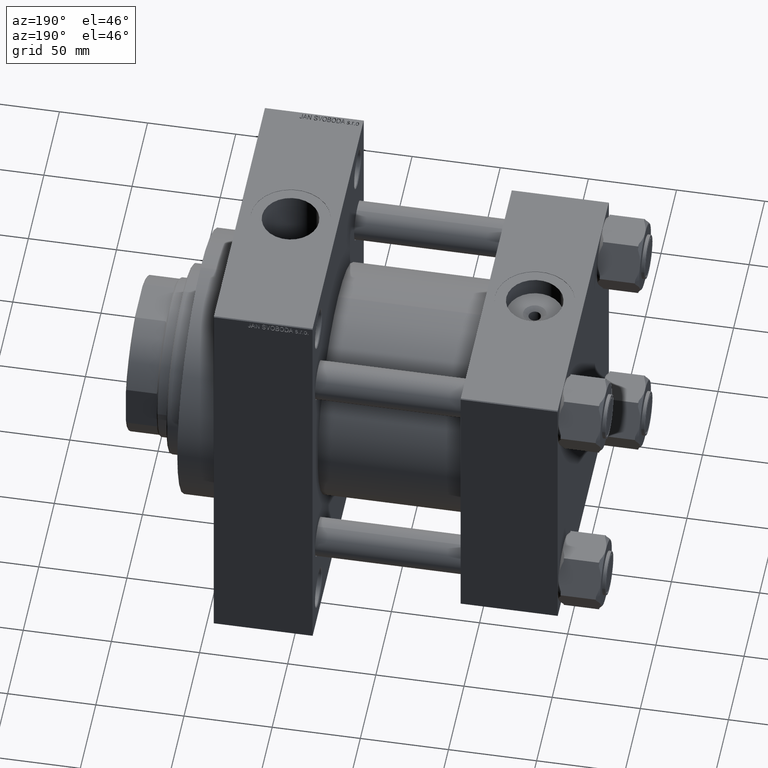
[diagram: clean part render]
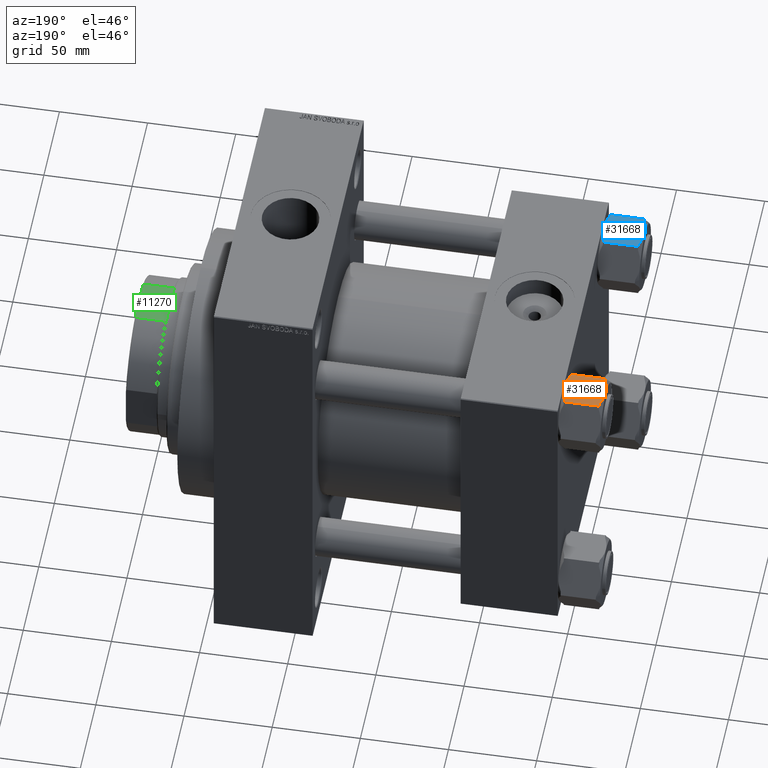
[diagram: same view with three faces highlighted in distinct colors, each labeled with its STEP entity id]
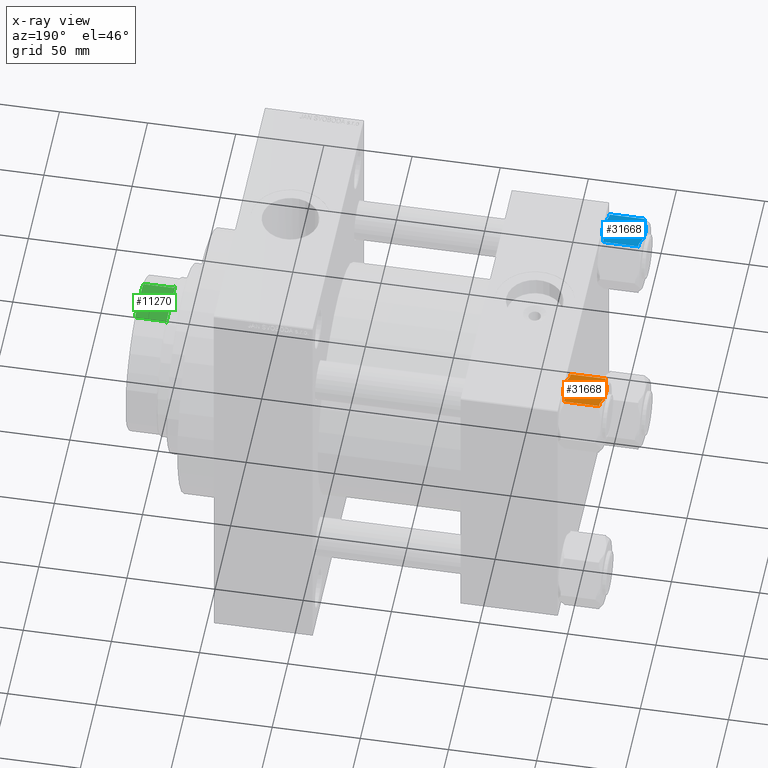
[diagram: x-ray of the same camera — body ghosted, the three highlighted faces saturated]
A machine part, auxiliary view with three faces highlighted in distinct colors.
The next image is the same camera in x-ray (body ghosted, the three faces saturated) — at least one of them is partly hidden behind the body in this view.
Their STEP definitions:

[orange] entity #31668 — the highlighted planar face has unit normal (0, -0, -1).
#232 = CARTESIAN_POINT ( 'NONE',  ( -1.921304447834798035, -18.72346922981957107, -23.90544093450555607 ) ) ;
#468 = CARTESIAN_POINT ( 'NONE',  ( -8.882222521378235314, -18.72346922981957107, -22.00000000000000000 ) ) ;
#1027 = CARTESIAN_POINT ( 'NONE',  ( -3.046460787050293550, -18.72346922981957817, -0.1914528163786773096 ) ) ;
#2355 = EDGE_CURVE ( 'NONE', #28222, #44941, #4615, .T. ) ;
#2752 = VECTOR ( 'NONE', #12035, 1000.000000000000000 ) ;
#3067 = AXIS2_PLACEMENT_3D ( 'NONE', #24650, #6187, #20763 ) ;
#3956 = CARTESIAN_POINT ( 'NONE',  ( -8.882222521378229985, -18.72346922981957107, -2.000000000000000000 ) ) ;
#4110 = CARTESIAN_POINT ( 'NONE',  ( -3.058371725687357490, -18.72346922981956752, -23.76678570710493332 ) ) ;
#4300 = CARTESIAN_POINT ( 'NONE',  ( 6.014330298555156773, -18.72346922981956396, -0.9304907305360362590 ) ) ;
#4602 = EDGE_CURVE ( 'NONE', #34521, #31603, #34482, .T. ) ;
#4615 = B_SPLINE_CURVE_WITH_KNOTS ( 'NONE', 3,
 ( #47775, #18675, #15031, #14553, #232, #4110, #29836, #11623, #44609, #30065, #18910, #468 ),
 .UNSPECIFIED., .F., .F.,
 ( 4, 2, 2, 2, 2, 4 ),
 ( 0.03829011598937170913, 0.03943115666170207007, 0.04057219733403243100, 0.04285427867869315288, 0.04513636002335388170, 0.04741844136801460358 ),
 .UNSPECIFIED. ) ;
#5619 = VECTOR ( 'NONE', #16119, 1000.000000000000000 ) ;
#5797 = CARTESIAN_POINT ( 'NONE',  ( -10.81000000000000227, -18.72346922981957107, -22.00000000000000000 ) ) ;
#5954 = EDGE_CURVE ( 'NONE', #34521, #19016, #46534, .T. ) ;
#6000 = B_SPLINE_CURVE_WITH_KNOTS ( 'NONE', 3,
 ( #3956, #18759, #19474, #8074, #29919, #1027, #45650, #15831 ),
 .UNSPECIFIED., .F., .F.,
 ( 4, 2, 2, 4 ),
 ( 0.02914159164821651313, 0.03142872273350531820, 0.03371585381879411980, 0.03829011598937172994 ),
 .UNSPECIFIED. ) ;
#6187 = DIRECTION ( 'NONE',  ( -1.604739570746352049E-16, 1.000000000000000000, 0.000000000000000000 ) ) ;
#6766 = CARTESIAN_POINT ( 'NONE',  ( -8.882222521378235314, -18.72346922981957107, -22.00000000000000000 ) ) ;
#6767 = CARTESIAN_POINT ( 'NONE',  ( 1.538851192155984648, -18.72346922981957107, -24.00000000000000000 ) ) ;
#7381 = CARTESIAN_POINT ( 'NONE',  ( 10.81000000000000405, -18.72346922981956752, -22.00000000000000000 ) ) ;
#7460 = CARTESIAN_POINT ( 'NONE',  ( 3.004629197474320035E-15, -18.72346922981957462, 0.000000000000000000 ) ) ;
#7692 = CARTESIAN_POINT ( 'NONE',  ( 5.284196261866825672, -18.72346922981957107, -0.7181181227872810435 ) ) ;
#7975 = EDGE_CURVE ( 'NONE', #9614, #29574, #44966, .T. ) ;
#8074 = CARTESIAN_POINT ( 'NONE',  ( -6.004110770065005376, -18.72346922981956396, -0.9271504873037127448 ) ) ;
#8160 = CARTESIAN_POINT ( 'NONE',  ( 8.882222521378242419, -18.72346922981957107, -22.00000000000000000 ) ) ;
#8384 = ORIENTED_EDGE ( 'NONE', *, *, #2355, .F. ) ;
#9010 = DIRECTION ( 'NONE',  ( -1.000000000000000000, -1.604739570746352049E-16, 0.000000000000000000 ) ) ;
#9614 = VERTEX_POINT ( 'NONE', #5797 ) ;
#9694 = CARTESIAN_POINT ( 'NONE',  ( 3.046460787050301100, -18.72346922981956396, -23.80854718362132516 ) ) ;
#11023 = CARTESIAN_POINT ( 'NONE',  ( 10.81000000000000405, -18.72346922981956752, -2.000000000000001776 ) ) ;
#11102 = CARTESIAN_POINT ( 'NONE',  ( 7.459573834530431213, -18.72346922981957107, -1.419798007050265376 ) ) ;
#11623 = CARTESIAN_POINT ( 'NONE',  ( -5.284196261866818567, -18.72346922981957817, -23.28188187721272939 ) ) ;
#12035 = DIRECTION ( 'NONE',  ( 1.000000000000000000, 1.604739570746352049E-16, -0.000000000000000000 ) ) ;
#12808 = VERTEX_POINT ( 'NONE', #29720 ) ;
#14049 = ORIENTED_EDGE ( 'NONE', *, *, #5954, .T. ) ;
#14553 = CARTESIAN_POINT ( 'NONE',  ( -1.539734355582360381, -18.72346922981957107, -23.94071174619772435 ) ) ;
#14658 = LINE ( 'NONE', #11023, #37137 ) ;
#14736 = CARTESIAN_POINT ( 'NONE',  ( 1.539734355582371705, -18.72346922981956396, -0.05928825380227900621 ) ) ;
#15031 = CARTESIAN_POINT ( 'NONE',  ( -0.7711943830713824388, -18.72346922981957107, -23.98804989692839129 ) ) ;
#15327 = EDGE_CURVE ( 'NONE', #29574, #26481, #40905, .T. ) ;
#15831 = CARTESIAN_POINT ( 'NONE',  ( 3.004629197474320035E-15, -18.72346922981957462, 0.000000000000000000 ) ) ;
#16119 = DIRECTION ( 'NONE',  ( -1.000000000000000000, -1.604739570746352049E-16, 0.000000000000000000 ) ) ;
#16861 = EDGE_CURVE ( 'NONE', #12808, #22093, #42092, .T. ) ;
#17895 = VECTOR ( 'NONE', #9010, 1000.000000000000000 ) ;
#18155 = CARTESIAN_POINT ( 'NONE',  ( 0.3838633933595320680, -18.72346922981957107, 5.154301363160822773E-15 ) ) ;
#18675 = CARTESIAN_POINT ( 'NONE',  ( -0.3838633933595202996, -18.72346922981956396, -24.00000000000001776 ) ) ;
#18759 = CARTESIAN_POINT ( 'NONE',  ( -8.180319050237816469, -18.72346922981957462, -1.699159308219205577 ) ) ;
#18910 = CARTESIAN_POINT ( 'NONE',  ( -8.177288578347878811, -18.72346922981957107, -22.30213957303345396 ) ) ;
#19016 = VERTEX_POINT ( 'NONE', #47412 ) ;
#19474 = CARTESIAN_POINT ( 'NONE',  ( -7.462432408233349967, -18.72346922981957107, -1.420646699533970159 ) ) ;
#19548 = VECTOR ( 'NONE', #25607, 1000.000000000000000 ) ;
#20763 = DIRECTION ( 'NONE',  ( -1.000000000000000000, -1.604739570746352049E-16, 0.000000000000000000 ) ) ;
#21012 = VECTOR ( 'NONE', #21077, 1000.000000000000000 ) ;
#21077 = DIRECTION ( 'NONE',  ( -0.000000000000000000, -0.000000000000000000, 1.000000000000000000 ) ) ;
#21243 = DIRECTION ( 'NONE',  ( 1.000000000000000000, 1.604739570746352049E-16, -0.000000000000000000 ) ) ;
#22093 = VERTEX_POINT ( 'NONE', #27492 ) ;
#23627 = ORIENTED_EDGE ( 'NONE', *, *, #32451, .F. ) ;
#23846 = ORIENTED_EDGE ( 'NONE', *, *, #16861, .F. ) ;
#23924 = FACE_OUTER_BOUND ( 'NONE', #42850, .T. ) ;
#24403 = CARTESIAN_POINT ( 'NONE',  ( -8.882222521378229985, -18.72346922981957107, -2.000000000000000000 ) ) ;
#24407 = ORIENTED_EDGE ( 'NONE', *, *, #44401, .F. ) ;
#24650 = CARTESIAN_POINT ( 'NONE',  ( 10.81000000000000405, -18.72346922981956752, -24.00000000000000000 ) ) ;
#24743 = CARTESIAN_POINT ( 'NONE',  ( 7.462432408233364178, -18.72346922981956752, -22.57935330046602829 ) ) ;
#25607 = DIRECTION ( 'NONE',  ( -0.000000000000000000, -0.000000000000000000, 1.000000000000000000 ) ) ;
#25916 = CARTESIAN_POINT ( 'NONE',  ( 8.882222521378235314, -18.72346922981957107, -2.000000000000000000 ) ) ;
#26117 = CARTESIAN_POINT ( 'NONE',  ( 8.882222521378242419, -18.72346922981957107, -22.00000000000000000 ) ) ;
#26481 = VERTEX_POINT ( 'NONE', #24403 ) ;
#26808 = LINE ( 'NONE', #45463, #5619 ) ;
#27492 = CARTESIAN_POINT ( 'NONE',  ( 8.882222521378235314, -18.72346922981957107, -2.000000000000000000 ) ) ;
#27527 = B_SPLINE_CURVE_WITH_KNOTS ( 'NONE', 3,
 ( #26117, #39509, #24743, #39757, #33378, #9694, #6767, #43147 ),
 .UNSPECIFIED., .F., .F.,
 ( 4, 2, 2, 4 ),
 ( 0.02914159164821649578, 0.03142872273350529738, 0.03371585381879410592, 0.03829011598937170913 ),
 .UNSPECIFIED. ) ;
#28222 = VERTEX_POINT ( 'NONE', #44513 ) ;
#29535 = CARTESIAN_POINT ( 'NONE',  ( 1.921304447834810913, -18.72346922981956752, -0.09455906549444703657 ) ) ;
#29574 = VERTEX_POINT ( 'NONE', #34522 ) ;
#29720 = CARTESIAN_POINT ( 'NONE',  ( 3.004629197474320035E-15, -18.72346922981957462, 0.000000000000000000 ) ) ;
#29836 = CARTESIAN_POINT ( 'NONE',  ( -3.806221811192781690, -18.72346922981956752, -23.63054087581594942 ) ) ;
#29919 = CARTESIAN_POINT ( 'NONE',  ( -5.269460841173481569, -18.72346922981956752, -0.7140404030614134756 ) ) ;
#30065 = CARTESIAN_POINT ( 'NONE',  ( -7.459573834530423220, -18.72346922981957462, -22.58020199294974262 ) ) ;
#31192 = PLANE ( 'NONE',  #3067 ) ;
#31603 = VERTEX_POINT ( 'NONE', #8160 ) ;
#31668 = ADVANCED_FACE ( 'NONE', ( #23924 ), #31192, .F. ) ;
#31833 = EDGE_CURVE ( 'NONE', #22093, #19016, #14658, .T. ) ;
#32451 = EDGE_CURVE ( 'NONE', #31603, #28222, #27527, .T. ) ;
#32948 = CARTESIAN_POINT ( 'NONE',  ( 0.7711943830713943182, -18.72346922981956752, -0.01195010307161543418 ) ) ;
#33378 = CARTESIAN_POINT ( 'NONE',  ( 5.269460841173493115, -18.72346922981956752, -23.28595959693858575 ) ) ;
#34482 = LINE ( 'NONE', #34955, #17895 ) ;
#34521 = VERTEX_POINT ( 'NONE', #7381 ) ;
#34522 = CARTESIAN_POINT ( 'NONE',  ( -10.81000000000000227, -18.72346922981957107, -2.000000000000001776 ) ) ;
#34955 = CARTESIAN_POINT ( 'NONE',  ( 10.81000000000000405, -18.72346922981956752, -22.00000000000000000 ) ) ;
#37137 = VECTOR ( 'NONE', #21243, 1000.000000000000000 ) ;
#37154 = ORIENTED_EDGE ( 'NONE', *, *, #4602, .F. ) ;
#37224 = CARTESIAN_POINT ( 'NONE',  ( -10.81000000000000227, -18.72346922981957107, -24.00000000000000000 ) ) ;
#37291 = CARTESIAN_POINT ( 'NONE',  ( 8.177288578347885917, -18.72346922981956396, -1.697860426966550706 ) ) ;
#38943 = ORIENTED_EDGE ( 'NONE', *, *, #31833, .F. ) ;
#39509 = CARTESIAN_POINT ( 'NONE',  ( 8.180319050237828904, -18.72346922981957107, -22.30084069178080242 ) ) ;
#39757 = CARTESIAN_POINT ( 'NONE',  ( 6.004110770065022251, -18.72346922981957107, -23.07284951269629047 ) ) ;
#40905 = LINE ( 'NONE', #41139, #2752 ) ;
#41139 = CARTESIAN_POINT ( 'NONE',  ( 10.81000000000000405, -18.72346922981956752, -2.000000000000001776 ) ) ;
#42092 = B_SPLINE_CURVE_WITH_KNOTS ( 'NONE', 3,
 ( #7460, #18155, #32948, #14736, #29535, #44560, #44318, #7692, #4300, #11102, #37291, #25916 ),
 .UNSPECIFIED., .F., .F.,
 ( 4, 2, 2, 2, 2, 4 ),
 ( 0.03829011598937172994, 0.03943115666170209088, 0.04057219733403245182, 0.04285427867869317370, 0.04513636002335389558, 0.04741844136801461745 ),
 .UNSPECIFIED. ) ;
#42278 = EDGE_CURVE ( 'NONE', #44941, #9614, #26808, .T. ) ;
#42530 = ORIENTED_EDGE ( 'NONE', *, *, #7975, .F. ) ;
#42850 = EDGE_LOOP ( 'NONE', ( #37154, #14049, #38943, #23846, #24407, #42992, #42530, #46344, #8384, #23627 ) ) ;
#42992 = ORIENTED_EDGE ( 'NONE', *, *, #15327, .F. ) ;
#43147 = CARTESIAN_POINT ( 'NONE',  ( 3.004629197474320035E-15, -18.72346922981957462, -24.00000000000000000 ) ) ;
#44318 = CARTESIAN_POINT ( 'NONE',  ( 3.806221811192793680, -18.72346922981956752, -0.3694591241840436413 ) ) ;
#44401 = EDGE_CURVE ( 'NONE', #26481, #12808, #6000, .T. ) ;
#44513 = CARTESIAN_POINT ( 'NONE',  ( 3.004629197474320035E-15, -18.72346922981957462, -24.00000000000000000 ) ) ;
#44560 = CARTESIAN_POINT ( 'NONE',  ( 3.058371725687371256, -18.72346922981957462, -0.2332142928950653726 ) ) ;
#44609 = CARTESIAN_POINT ( 'NONE',  ( -6.014330298555147003, -18.72346922981957107, -23.06950926946397118 ) ) ;
#44941 = VERTEX_POINT ( 'NONE', #6766 ) ;
#44966 = LINE ( 'NONE', #37224, #19548 ) ;
#45463 = CARTESIAN_POINT ( 'NONE',  ( 10.81000000000000405, -18.72346922981956752, -22.00000000000000000 ) ) ;
#45650 = CARTESIAN_POINT ( 'NONE',  ( -1.538851192155974656, -18.72346922981957107, 5.332919435913076512E-15 ) ) ;
#46344 = ORIENTED_EDGE ( 'NONE', *, *, #42278, .F. ) ;
#46534 = LINE ( 'NONE', #47244, #21012 ) ;
#47244 = CARTESIAN_POINT ( 'NONE',  ( 10.81000000000000405, -18.72346922981956752, -24.00000000000000000 ) ) ;
#47412 = CARTESIAN_POINT ( 'NONE',  ( 10.81000000000000405, -18.72346922981956752, -2.000000000000001776 ) ) ;
#47775 = CARTESIAN_POINT ( 'NONE',  ( 3.004629197474320035E-15, -18.72346922981957462, -24.00000000000000000 ) ) ;

[blue] entity #31668 — the highlighted planar face has unit normal (0, -0, -1).
#232 = CARTESIAN_POINT ( 'NONE',  ( -1.921304447834798035, -18.72346922981957107, -23.90544093450555607 ) ) ;
#468 = CARTESIAN_POINT ( 'NONE',  ( -8.882222521378235314, -18.72346922981957107, -22.00000000000000000 ) ) ;
#1027 = CARTESIAN_POINT ( 'NONE',  ( -3.046460787050293550, -18.72346922981957817, -0.1914528163786773096 ) ) ;
#2355 = EDGE_CURVE ( 'NONE', #28222, #44941, #4615, .T. ) ;
#2752 = VECTOR ( 'NONE', #12035, 1000.000000000000000 ) ;
#3067 = AXIS2_PLACEMENT_3D ( 'NONE', #24650, #6187, #20763 ) ;
#3956 = CARTESIAN_POINT ( 'NONE',  ( -8.882222521378229985, -18.72346922981957107, -2.000000000000000000 ) ) ;
#4110 = CARTESIAN_POINT ( 'NONE',  ( -3.058371725687357490, -18.72346922981956752, -23.76678570710493332 ) ) ;
#4300 = CARTESIAN_POINT ( 'NONE',  ( 6.014330298555156773, -18.72346922981956396, -0.9304907305360362590 ) ) ;
#4602 = EDGE_CURVE ( 'NONE', #34521, #31603, #34482, .T. ) ;
#4615 = B_SPLINE_CURVE_WITH_KNOTS ( 'NONE', 3,
 ( #47775, #18675, #15031, #14553, #232, #4110, #29836, #11623, #44609, #30065, #18910, #468 ),
 .UNSPECIFIED., .F., .F.,
 ( 4, 2, 2, 2, 2, 4 ),
 ( 0.03829011598937170913, 0.03943115666170207007, 0.04057219733403243100, 0.04285427867869315288, 0.04513636002335388170, 0.04741844136801460358 ),
 .UNSPECIFIED. ) ;
#5619 = VECTOR ( 'NONE', #16119, 1000.000000000000000 ) ;
#5797 = CARTESIAN_POINT ( 'NONE',  ( -10.81000000000000227, -18.72346922981957107, -22.00000000000000000 ) ) ;
#5954 = EDGE_CURVE ( 'NONE', #34521, #19016, #46534, .T. ) ;
#6000 = B_SPLINE_CURVE_WITH_KNOTS ( 'NONE', 3,
 ( #3956, #18759, #19474, #8074, #29919, #1027, #45650, #15831 ),
 .UNSPECIFIED., .F., .F.,
 ( 4, 2, 2, 4 ),
 ( 0.02914159164821651313, 0.03142872273350531820, 0.03371585381879411980, 0.03829011598937172994 ),
 .UNSPECIFIED. ) ;
#6187 = DIRECTION ( 'NONE',  ( -1.604739570746352049E-16, 1.000000000000000000, 0.000000000000000000 ) ) ;
#6766 = CARTESIAN_POINT ( 'NONE',  ( -8.882222521378235314, -18.72346922981957107, -22.00000000000000000 ) ) ;
#6767 = CARTESIAN_POINT ( 'NONE',  ( 1.538851192155984648, -18.72346922981957107, -24.00000000000000000 ) ) ;
#7381 = CARTESIAN_POINT ( 'NONE',  ( 10.81000000000000405, -18.72346922981956752, -22.00000000000000000 ) ) ;
#7460 = CARTESIAN_POINT ( 'NONE',  ( 3.004629197474320035E-15, -18.72346922981957462, 0.000000000000000000 ) ) ;
#7692 = CARTESIAN_POINT ( 'NONE',  ( 5.284196261866825672, -18.72346922981957107, -0.7181181227872810435 ) ) ;
#7975 = EDGE_CURVE ( 'NONE', #9614, #29574, #44966, .T. ) ;
#8074 = CARTESIAN_POINT ( 'NONE',  ( -6.004110770065005376, -18.72346922981956396, -0.9271504873037127448 ) ) ;
#8160 = CARTESIAN_POINT ( 'NONE',  ( 8.882222521378242419, -18.72346922981957107, -22.00000000000000000 ) ) ;
#8384 = ORIENTED_EDGE ( 'NONE', *, *, #2355, .F. ) ;
#9010 = DIRECTION ( 'NONE',  ( -1.000000000000000000, -1.604739570746352049E-16, 0.000000000000000000 ) ) ;
#9614 = VERTEX_POINT ( 'NONE', #5797 ) ;
#9694 = CARTESIAN_POINT ( 'NONE',  ( 3.046460787050301100, -18.72346922981956396, -23.80854718362132516 ) ) ;
#11023 = CARTESIAN_POINT ( 'NONE',  ( 10.81000000000000405, -18.72346922981956752, -2.000000000000001776 ) ) ;
#11102 = CARTESIAN_POINT ( 'NONE',  ( 7.459573834530431213, -18.72346922981957107, -1.419798007050265376 ) ) ;
#11623 = CARTESIAN_POINT ( 'NONE',  ( -5.284196261866818567, -18.72346922981957817, -23.28188187721272939 ) ) ;
#12035 = DIRECTION ( 'NONE',  ( 1.000000000000000000, 1.604739570746352049E-16, -0.000000000000000000 ) ) ;
#12808 = VERTEX_POINT ( 'NONE', #29720 ) ;
#14049 = ORIENTED_EDGE ( 'NONE', *, *, #5954, .T. ) ;
#14553 = CARTESIAN_POINT ( 'NONE',  ( -1.539734355582360381, -18.72346922981957107, -23.94071174619772435 ) ) ;
#14658 = LINE ( 'NONE', #11023, #37137 ) ;
#14736 = CARTESIAN_POINT ( 'NONE',  ( 1.539734355582371705, -18.72346922981956396, -0.05928825380227900621 ) ) ;
#15031 = CARTESIAN_POINT ( 'NONE',  ( -0.7711943830713824388, -18.72346922981957107, -23.98804989692839129 ) ) ;
#15327 = EDGE_CURVE ( 'NONE', #29574, #26481, #40905, .T. ) ;
#15831 = CARTESIAN_POINT ( 'NONE',  ( 3.004629197474320035E-15, -18.72346922981957462, 0.000000000000000000 ) ) ;
#16119 = DIRECTION ( 'NONE',  ( -1.000000000000000000, -1.604739570746352049E-16, 0.000000000000000000 ) ) ;
#16861 = EDGE_CURVE ( 'NONE', #12808, #22093, #42092, .T. ) ;
#17895 = VECTOR ( 'NONE', #9010, 1000.000000000000000 ) ;
#18155 = CARTESIAN_POINT ( 'NONE',  ( 0.3838633933595320680, -18.72346922981957107, 5.154301363160822773E-15 ) ) ;
#18675 = CARTESIAN_POINT ( 'NONE',  ( -0.3838633933595202996, -18.72346922981956396, -24.00000000000001776 ) ) ;
#18759 = CARTESIAN_POINT ( 'NONE',  ( -8.180319050237816469, -18.72346922981957462, -1.699159308219205577 ) ) ;
#18910 = CARTESIAN_POINT ( 'NONE',  ( -8.177288578347878811, -18.72346922981957107, -22.30213957303345396 ) ) ;
#19016 = VERTEX_POINT ( 'NONE', #47412 ) ;
#19474 = CARTESIAN_POINT ( 'NONE',  ( -7.462432408233349967, -18.72346922981957107, -1.420646699533970159 ) ) ;
#19548 = VECTOR ( 'NONE', #25607, 1000.000000000000000 ) ;
#20763 = DIRECTION ( 'NONE',  ( -1.000000000000000000, -1.604739570746352049E-16, 0.000000000000000000 ) ) ;
#21012 = VECTOR ( 'NONE', #21077, 1000.000000000000000 ) ;
#21077 = DIRECTION ( 'NONE',  ( -0.000000000000000000, -0.000000000000000000, 1.000000000000000000 ) ) ;
#21243 = DIRECTION ( 'NONE',  ( 1.000000000000000000, 1.604739570746352049E-16, -0.000000000000000000 ) ) ;
#22093 = VERTEX_POINT ( 'NONE', #27492 ) ;
#23627 = ORIENTED_EDGE ( 'NONE', *, *, #32451, .F. ) ;
#23846 = ORIENTED_EDGE ( 'NONE', *, *, #16861, .F. ) ;
#23924 = FACE_OUTER_BOUND ( 'NONE', #42850, .T. ) ;
#24403 = CARTESIAN_POINT ( 'NONE',  ( -8.882222521378229985, -18.72346922981957107, -2.000000000000000000 ) ) ;
#24407 = ORIENTED_EDGE ( 'NONE', *, *, #44401, .F. ) ;
#24650 = CARTESIAN_POINT ( 'NONE',  ( 10.81000000000000405, -18.72346922981956752, -24.00000000000000000 ) ) ;
#24743 = CARTESIAN_POINT ( 'NONE',  ( 7.462432408233364178, -18.72346922981956752, -22.57935330046602829 ) ) ;
#25607 = DIRECTION ( 'NONE',  ( -0.000000000000000000, -0.000000000000000000, 1.000000000000000000 ) ) ;
#25916 = CARTESIAN_POINT ( 'NONE',  ( 8.882222521378235314, -18.72346922981957107, -2.000000000000000000 ) ) ;
#26117 = CARTESIAN_POINT ( 'NONE',  ( 8.882222521378242419, -18.72346922981957107, -22.00000000000000000 ) ) ;
#26481 = VERTEX_POINT ( 'NONE', #24403 ) ;
#26808 = LINE ( 'NONE', #45463, #5619 ) ;
#27492 = CARTESIAN_POINT ( 'NONE',  ( 8.882222521378235314, -18.72346922981957107, -2.000000000000000000 ) ) ;
#27527 = B_SPLINE_CURVE_WITH_KNOTS ( 'NONE', 3,
 ( #26117, #39509, #24743, #39757, #33378, #9694, #6767, #43147 ),
 .UNSPECIFIED., .F., .F.,
 ( 4, 2, 2, 4 ),
 ( 0.02914159164821649578, 0.03142872273350529738, 0.03371585381879410592, 0.03829011598937170913 ),
 .UNSPECIFIED. ) ;
#28222 = VERTEX_POINT ( 'NONE', #44513 ) ;
#29535 = CARTESIAN_POINT ( 'NONE',  ( 1.921304447834810913, -18.72346922981956752, -0.09455906549444703657 ) ) ;
#29574 = VERTEX_POINT ( 'NONE', #34522 ) ;
#29720 = CARTESIAN_POINT ( 'NONE',  ( 3.004629197474320035E-15, -18.72346922981957462, 0.000000000000000000 ) ) ;
#29836 = CARTESIAN_POINT ( 'NONE',  ( -3.806221811192781690, -18.72346922981956752, -23.63054087581594942 ) ) ;
#29919 = CARTESIAN_POINT ( 'NONE',  ( -5.269460841173481569, -18.72346922981956752, -0.7140404030614134756 ) ) ;
#30065 = CARTESIAN_POINT ( 'NONE',  ( -7.459573834530423220, -18.72346922981957462, -22.58020199294974262 ) ) ;
#31192 = PLANE ( 'NONE',  #3067 ) ;
#31603 = VERTEX_POINT ( 'NONE', #8160 ) ;
#31668 = ADVANCED_FACE ( 'NONE', ( #23924 ), #31192, .F. ) ;
#31833 = EDGE_CURVE ( 'NONE', #22093, #19016, #14658, .T. ) ;
#32451 = EDGE_CURVE ( 'NONE', #31603, #28222, #27527, .T. ) ;
#32948 = CARTESIAN_POINT ( 'NONE',  ( 0.7711943830713943182, -18.72346922981956752, -0.01195010307161543418 ) ) ;
#33378 = CARTESIAN_POINT ( 'NONE',  ( 5.269460841173493115, -18.72346922981956752, -23.28595959693858575 ) ) ;
#34482 = LINE ( 'NONE', #34955, #17895 ) ;
#34521 = VERTEX_POINT ( 'NONE', #7381 ) ;
#34522 = CARTESIAN_POINT ( 'NONE',  ( -10.81000000000000227, -18.72346922981957107, -2.000000000000001776 ) ) ;
#34955 = CARTESIAN_POINT ( 'NONE',  ( 10.81000000000000405, -18.72346922981956752, -22.00000000000000000 ) ) ;
#37137 = VECTOR ( 'NONE', #21243, 1000.000000000000000 ) ;
#37154 = ORIENTED_EDGE ( 'NONE', *, *, #4602, .F. ) ;
#37224 = CARTESIAN_POINT ( 'NONE',  ( -10.81000000000000227, -18.72346922981957107, -24.00000000000000000 ) ) ;
#37291 = CARTESIAN_POINT ( 'NONE',  ( 8.177288578347885917, -18.72346922981956396, -1.697860426966550706 ) ) ;
#38943 = ORIENTED_EDGE ( 'NONE', *, *, #31833, .F. ) ;
#39509 = CARTESIAN_POINT ( 'NONE',  ( 8.180319050237828904, -18.72346922981957107, -22.30084069178080242 ) ) ;
#39757 = CARTESIAN_POINT ( 'NONE',  ( 6.004110770065022251, -18.72346922981957107, -23.07284951269629047 ) ) ;
#40905 = LINE ( 'NONE', #41139, #2752 ) ;
#41139 = CARTESIAN_POINT ( 'NONE',  ( 10.81000000000000405, -18.72346922981956752, -2.000000000000001776 ) ) ;
#42092 = B_SPLINE_CURVE_WITH_KNOTS ( 'NONE', 3,
 ( #7460, #18155, #32948, #14736, #29535, #44560, #44318, #7692, #4300, #11102, #37291, #25916 ),
 .UNSPECIFIED., .F., .F.,
 ( 4, 2, 2, 2, 2, 4 ),
 ( 0.03829011598937172994, 0.03943115666170209088, 0.04057219733403245182, 0.04285427867869317370, 0.04513636002335389558, 0.04741844136801461745 ),
 .UNSPECIFIED. ) ;
#42278 = EDGE_CURVE ( 'NONE', #44941, #9614, #26808, .T. ) ;
#42530 = ORIENTED_EDGE ( 'NONE', *, *, #7975, .F. ) ;
#42850 = EDGE_LOOP ( 'NONE', ( #37154, #14049, #38943, #23846, #24407, #42992, #42530, #46344, #8384, #23627 ) ) ;
#42992 = ORIENTED_EDGE ( 'NONE', *, *, #15327, .F. ) ;
#43147 = CARTESIAN_POINT ( 'NONE',  ( 3.004629197474320035E-15, -18.72346922981957462, -24.00000000000000000 ) ) ;
#44318 = CARTESIAN_POINT ( 'NONE',  ( 3.806221811192793680, -18.72346922981956752, -0.3694591241840436413 ) ) ;
#44401 = EDGE_CURVE ( 'NONE', #26481, #12808, #6000, .T. ) ;
#44513 = CARTESIAN_POINT ( 'NONE',  ( 3.004629197474320035E-15, -18.72346922981957462, -24.00000000000000000 ) ) ;
#44560 = CARTESIAN_POINT ( 'NONE',  ( 3.058371725687371256, -18.72346922981957462, -0.2332142928950653726 ) ) ;
#44609 = CARTESIAN_POINT ( 'NONE',  ( -6.014330298555147003, -18.72346922981957107, -23.06950926946397118 ) ) ;
#44941 = VERTEX_POINT ( 'NONE', #6766 ) ;
#44966 = LINE ( 'NONE', #37224, #19548 ) ;
#45463 = CARTESIAN_POINT ( 'NONE',  ( 10.81000000000000405, -18.72346922981956752, -22.00000000000000000 ) ) ;
#45650 = CARTESIAN_POINT ( 'NONE',  ( -1.538851192155974656, -18.72346922981957107, 5.332919435913076512E-15 ) ) ;
#46344 = ORIENTED_EDGE ( 'NONE', *, *, #42278, .F. ) ;
#46534 = LINE ( 'NONE', #47244, #21012 ) ;
#47244 = CARTESIAN_POINT ( 'NONE',  ( 10.81000000000000405, -18.72346922981956752, -24.00000000000000000 ) ) ;
#47412 = CARTESIAN_POINT ( 'NONE',  ( 10.81000000000000405, -18.72346922981956752, -2.000000000000001776 ) ) ;
#47775 = CARTESIAN_POINT ( 'NONE',  ( 3.004629197474320035E-15, -18.72346922981957462, -24.00000000000000000 ) ) ;

[green] entity #11270 — the highlighted planar face has unit normal (0, 0, -1).
#858 = CARTESIAN_POINT ( 'NONE',  ( 13.11487704860396164, -42.00000000000000711, -0.001000000000001000089 ) ) ;
#1094 = LINE ( 'NONE', #858, #44792 ) ;
#2615 = DIRECTION ( 'NONE',  ( 1.000000000000000000, 0.000000000000000000, 0.000000000000000000 ) ) ;
#4546 = CARTESIAN_POINT ( 'NONE',  ( 14.70544116985251826, -42.00000000000000711, 179.0000000000000000 ) ) ;
#5311 = CARTESIAN_POINT ( 'NONE',  ( 13.11487704860396164, -42.00000000000000711, 179.4999999999998579 ) ) ;
#5394 = VERTEX_POINT ( 'NONE', #18556 ) ;
#5597 = ORIENTED_EDGE ( 'NONE', *, *, #15231, .T. ) ;
#6381 = EDGE_CURVE ( 'NONE', #24402, #34403, #33127, .T. ) ;
#7168 = CARTESIAN_POINT ( 'NONE',  ( -13.11487704860396164, -42.00000000000000711, -0.001000000000001000089 ) ) ;
#7376 = CARTESIAN_POINT ( 'NONE',  ( -13.11487704860396164, -42.00000000000000711, 179.4999999999999147 ) ) ;
#7499 = VERTEX_POINT ( 'NONE', #39548 ) ;
#7672 = CARTESIAN_POINT ( 'NONE',  ( 13.11487704860396164, -42.00000000000000711, 179.4999999999998579 ) ) ;
#8089 = CARTESIAN_POINT ( 'NONE',  ( -14.17668678407866700, -42.00000000000000711, 179.1747318317595159 ) ) ;
#8316 = DIRECTION ( 'NONE',  ( 0.000000000000000000, -0.000000000000000000, 1.000000000000000000 ) ) ;
#8808 = VERTEX_POINT ( 'NONE', #5311 ) ;
#10614 = EDGE_LOOP ( 'NONE', ( #38404, #18196, #31542, #30415, #39126, #35494, #5597, #21477 ) ) ;
#10842 = CARTESIAN_POINT ( 'NONE',  ( -41.99999999999999289, -42.00000000000000000, 179.0000000000000000 ) ) ;
#11270 = ADVANCED_FACE ( 'NONE', ( #15829 ), #12186, .F. ) ;
#11596 = DIRECTION ( 'NONE',  ( 1.000000000000000000, 0.000000000000000000, 0.000000000000000000 ) ) ;
#12019 = DIRECTION ( 'NONE',  ( -0.000000000000000000, -0.000000000000000000, 1.000000000000000000 ) ) ;
#12186 = PLANE ( 'NONE',  #26618 ) ;
#12978 = VERTEX_POINT ( 'NONE', #4546 ) ;
#13470 = CARTESIAN_POINT ( 'NONE',  ( -13.11487704860396164, -42.00000000000000711, 196.4999999999997158 ) ) ;
#13745 = B_SPLINE_CURVE_WITH_KNOTS ( 'NONE', 3,
 ( #7376, #36970, #8089, #33811 ),
 .UNSPECIFIED., .F., .F.,
 ( 4, 4 ),
 ( 0.1441993541697251247, 0.1458616311433946211 ),
 .UNSPECIFIED. ) ;
#15231 = EDGE_CURVE ( 'NONE', #7499, #12978, #43828, .T. ) ;
#15288 = B_SPLINE_CURVE_WITH_KNOTS ( 'NONE', 3,
 ( #47736, #30023, #29541, #33666 ),
 .UNSPECIFIED., .F., .F.,
 ( 4, 4 ),
 ( 1.387778780781445676E-17, 0.001858641690139490113 ),
 .UNSPECIFIED. ) ;
#15829 = FACE_OUTER_BOUND ( 'NONE', #10614, .T. ) ;
#18196 = ORIENTED_EDGE ( 'NONE', *, *, #44126, .T. ) ;
#18556 = CARTESIAN_POINT ( 'NONE',  ( -11.32475165290533425, -42.00000000000000000, 196.9999999999999716 ) ) ;
#18649 = LINE ( 'NONE', #44814, #35655 ) ;
#19238 = DIRECTION ( 'NONE',  ( 0.000000000000000000, 1.000000000000000000, 0.000000000000000000 ) ) ;
#20280 = VECTOR ( 'NONE', #33361, 1000.000000000000000 ) ;
#21477 = ORIENTED_EDGE ( 'NONE', *, *, #47284, .T. ) ;
#22042 = B_SPLINE_CURVE_WITH_KNOTS ( 'NONE', 3,
 ( #40906, #36801, #29052, #7672 ),
 .UNSPECIFIED., .F., .F.,
 ( 4, 4 ),
 ( 0.1921110922802836130, 0.1937661417806191277 ),
 .UNSPECIFIED. ) ;
#24402 = VERTEX_POINT ( 'NONE', #27354 ) ;
#25418 = EDGE_CURVE ( 'NONE', #8808, #31791, #1094, .T. ) ;
#25732 = EDGE_CURVE ( 'NONE', #24402, #7499, #13745, .T. ) ;
#26618 = AXIS2_PLACEMENT_3D ( 'NONE', #45648, #19238, #8316 ) ;
#27354 = CARTESIAN_POINT ( 'NONE',  ( -13.11487704860396164, -42.00000000000000711, 179.4999999999999147 ) ) ;
#28313 = VECTOR ( 'NONE', #2615, 1000.000000000000000 ) ;
#29052 = CARTESIAN_POINT ( 'NONE',  ( 13.64897575764567783, -42.00000000000000711, 179.3408036613430738 ) ) ;
#29541 = CARTESIAN_POINT ( 'NONE',  ( 11.92440761087188505, -42.00000000000000000, 196.8438860965251820 ) ) ;
#30023 = CARTESIAN_POINT ( 'NONE',  ( 12.52105423598749212, -42.00000000000000711, 196.6769980267298195 ) ) ;
#30415 = ORIENTED_EDGE ( 'NONE', *, *, #38824, .T. ) ;
#31542 = ORIENTED_EDGE ( 'NONE', *, *, #33329, .F. ) ;
#31791 = VERTEX_POINT ( 'NONE', #47654 ) ;
#32951 = CARTESIAN_POINT ( 'NONE',  ( -11.92440761087176071, -42.00000000000000000, 196.8438860965251536 ) ) ;
#33127 = LINE ( 'NONE', #7168, #20280 ) ;
#33329 = EDGE_CURVE ( 'NONE', #5394, #43116, #18649, .T. ) ;
#33361 = DIRECTION ( 'NONE',  ( -0.000000000000000000, -0.000000000000000000, 1.000000000000000000 ) ) ;
#33666 = CARTESIAN_POINT ( 'NONE',  ( 11.32475165290554564, -42.00000000000000000, 196.9999999999999716 ) ) ;
#33811 = CARTESIAN_POINT ( 'NONE',  ( -14.70544116985254846, -42.00000000000000711, 179.0000000000000000 ) ) ;
#34020 = B_SPLINE_CURVE_WITH_KNOTS ( 'NONE', 3,
 ( #44080, #32951, #47730, #36822 ),
 .UNSPECIFIED., .F., .F.,
 ( 4, 4 ),
 ( 0.000000000000000000, 0.001858641690139720398 ),
 .UNSPECIFIED. ) ;
#34403 = VERTEX_POINT ( 'NONE', #13470 ) ;
#35494 = ORIENTED_EDGE ( 'NONE', *, *, #25732, .T. ) ;
#35655 = VECTOR ( 'NONE', #11596, 1000.000000000000000 ) ;
#36801 = CARTESIAN_POINT ( 'NONE',  ( 14.17906395644905615, -42.00000000000000711, 179.1739462729180730 ) ) ;
#36822 = CARTESIAN_POINT ( 'NONE',  ( -13.11487704860396164, -42.00000000000000711, 196.4999999999997158 ) ) ;
#36970 = CARTESIAN_POINT ( 'NONE',  ( -13.64652296432347001, -42.00000000000000711, 179.3415347541350684 ) ) ;
#38404 = ORIENTED_EDGE ( 'NONE', *, *, #25418, .T. ) ;
#38824 = EDGE_CURVE ( 'NONE', #5394, #34403, #34020, .T. ) ;
#39126 = ORIENTED_EDGE ( 'NONE', *, *, #6381, .F. ) ;
#39548 = CARTESIAN_POINT ( 'NONE',  ( -14.70544116985254846, -42.00000000000000711, 179.0000000000000000 ) ) ;
#40906 = CARTESIAN_POINT ( 'NONE',  ( 14.70544116985251826, -42.00000000000000711, 179.0000000000000000 ) ) ;
#42600 = CARTESIAN_POINT ( 'NONE',  ( 11.32475165290554564, -42.00000000000000000, 196.9999999999999716 ) ) ;
#43116 = VERTEX_POINT ( 'NONE', #42600 ) ;
#43828 = LINE ( 'NONE', #10842, #28313 ) ;
#44080 = CARTESIAN_POINT ( 'NONE',  ( -11.32475165290533425, -42.00000000000000000, 196.9999999999999716 ) ) ;
#44126 = EDGE_CURVE ( 'NONE', #31791, #43116, #15288, .T. ) ;
#44792 = VECTOR ( 'NONE', #12019, 1000.000000000000000 ) ;
#44814 = CARTESIAN_POINT ( 'NONE',  ( -41.99999999999999289, -42.00000000000000000, 196.9999999999999716 ) ) ;
#45648 = CARTESIAN_POINT ( 'NONE',  ( -41.99999999999999289, -42.00000000000000000, 196.9999999999999716 ) ) ;
#47284 = EDGE_CURVE ( 'NONE', #12978, #8808, #22042, .T. ) ;
#47654 = CARTESIAN_POINT ( 'NONE',  ( 13.11487704860396164, -42.00000000000000711, 196.4999999999997442 ) ) ;
#47730 = CARTESIAN_POINT ( 'NONE',  ( -12.52105423598741574, -42.00000000000000000, 196.6769980267297910 ) ) ;
#47736 = CARTESIAN_POINT ( 'NONE',  ( 13.11487704860396164, -42.00000000000000711, 196.4999999999997442 ) ) ;